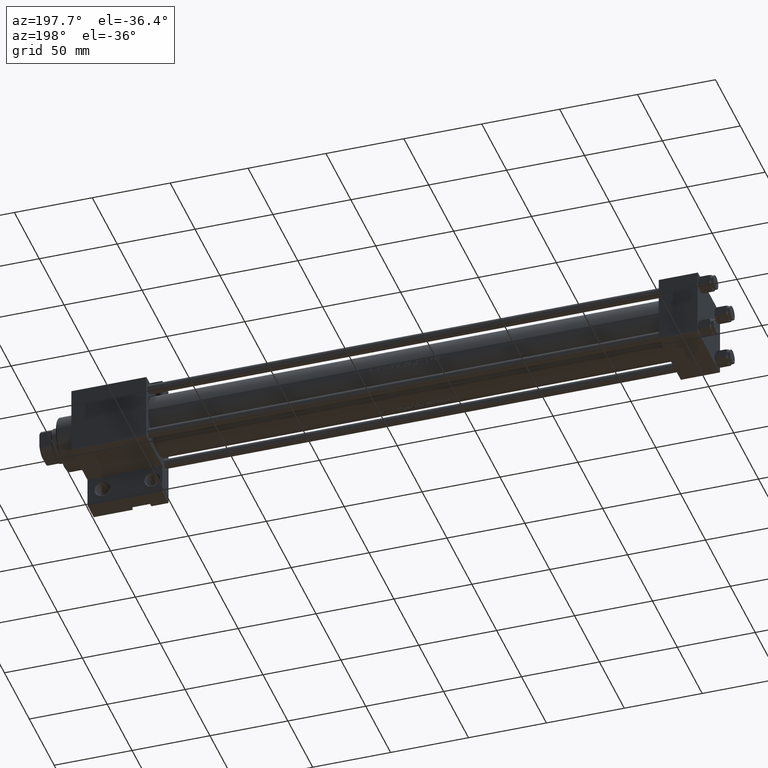
[diagram: clean part render]
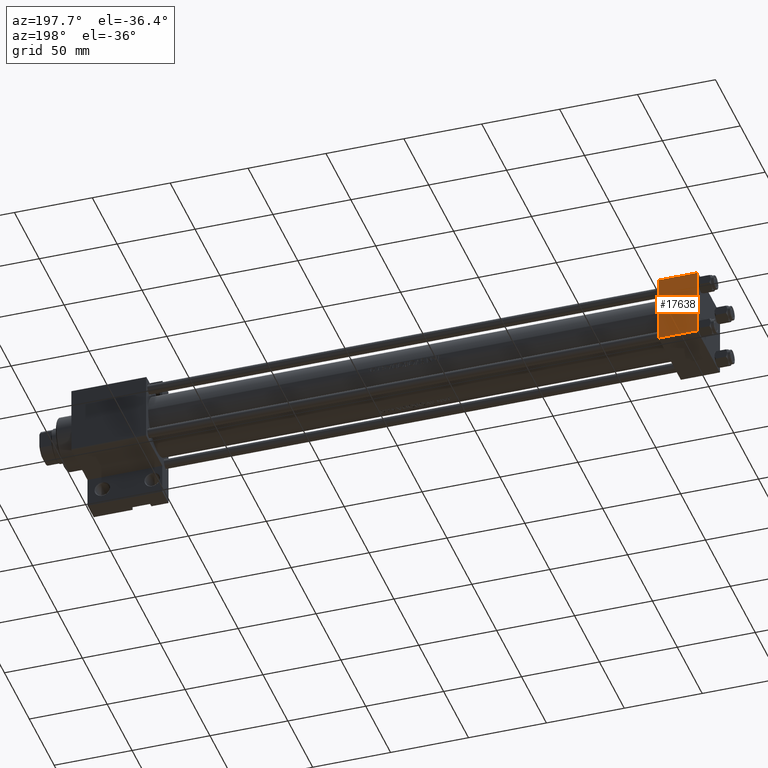
[diagram: same view with one face highlighted and labeled with its STEP entity id]
A machine part, auxiliary view. The second image highlights one B-rep face of the part: STEP entity #17638.
In plain terms, the highlighted planar face has unit normal (0, -1, -0).
Its self-contained STEP definition (entity closure, byte-faithful):
#718 = LINE ( 'NONE', #11575, #21409 ) ;
#1323 = VERTEX_POINT ( 'NONE', #17539 ) ;
#2132 = CARTESIAN_POINT ( 'NONE',  ( 0.000000000000000000, 21.99999999999999289, 22.50000000000000355 ) ) ;
#3146 = FACE_OUTER_BOUND ( 'NONE', #16495, .T. ) ;
#3866 = PLANE ( 'NONE',  #6480 ) ;
#6480 = AXIS2_PLACEMENT_3D ( 'NONE', #18126, #44627, #32590 ) ;
#7642 = DIRECTION ( 'NONE',  ( 0.000000000000000000, -1.000000000000000000, -7.709882115452476934E-17 ) ) ;
#9554 = ORIENTED_EDGE ( 'NONE', *, *, #14096, .F. ) ;
#10480 = CARTESIAN_POINT ( 'NONE',  ( 0.000000000000000000, -21.99999999999997868, 22.50000000000000000 ) ) ;
#11575 = CARTESIAN_POINT ( 'NONE',  ( 25.00000000000000000, -21.99999999999999289, 22.50000000000000000 ) ) ;
#11980 = EDGE_CURVE ( 'NONE', #1323, #14214, #45555, .T. ) ;
#13413 = CARTESIAN_POINT ( 'NONE',  ( 0.000000000000000000, 22.50000000000000000, 22.50000000000000355 ) ) ;
#14078 = VECTOR ( 'NONE', #20897, 1000.000000000000000 ) ;
#14096 = EDGE_CURVE ( 'NONE', #1323, #35906, #25521, .T. ) ;
#14214 = VERTEX_POINT ( 'NONE', #19003 ) ;
#14842 = ORIENTED_EDGE ( 'NONE', *, *, #11980, .T. ) ;
#16495 = EDGE_LOOP ( 'NONE', ( #35566, #35023, #9554, #14842 ) ) ;
#16858 = DIRECTION ( 'NONE',  ( -1.000000000000000000, 0.000000000000000000, 0.000000000000000000 ) ) ;
#17539 = CARTESIAN_POINT ( 'NONE',  ( 25.00000000000000000, 21.99999999999999289, 22.50000000000000355 ) ) ;
#17638 = ADVANCED_FACE ( 'NONE', ( #3146 ), #3866, .F. ) ;
#18126 = CARTESIAN_POINT ( 'NONE',  ( 25.00000000000000000, 22.50000000000000000, 22.50000000000000355 ) ) ;
#18839 = VECTOR ( 'NONE', #16858, 1000.000000000000000 ) ;
#19003 = CARTESIAN_POINT ( 'NONE',  ( 0.000000000000000000, 21.99999999999999289, 22.50000000000000355 ) ) ;
#20897 = DIRECTION ( 'NONE',  ( 0.000000000000000000, -1.000000000000000000, -7.709882115452476934E-17 ) ) ;
#21409 = VECTOR ( 'NONE', #26558, 1000.000000000000000 ) ;
#23462 = VERTEX_POINT ( 'NONE', #10480 ) ;
#25521 = LINE ( 'NONE', #46981, #28845 ) ;
#26558 = DIRECTION ( 'NONE',  ( 1.000000000000000000, 0.000000000000000000, 0.000000000000000000 ) ) ;
#28845 = VECTOR ( 'NONE', #7642, 1000.000000000000000 ) ;
#29407 = EDGE_CURVE ( 'NONE', #23462, #35906, #718, .T. ) ;
#31427 = CARTESIAN_POINT ( 'NONE',  ( 25.00000000000000000, -21.99999999999997868, 22.50000000000000000 ) ) ;
#32590 = DIRECTION ( 'NONE',  ( 0.000000000000000000, 1.000000000000000000, 7.709882115452476934E-17 ) ) ;
#35023 = ORIENTED_EDGE ( 'NONE', *, *, #29407, .T. ) ;
#35135 = LINE ( 'NONE', #13413, #14078 ) ;
#35566 = ORIENTED_EDGE ( 'NONE', *, *, #42689, .T. ) ;
#35906 = VERTEX_POINT ( 'NONE', #31427 ) ;
#42689 = EDGE_CURVE ( 'NONE', #14214, #23462, #35135, .T. ) ;
#44627 = DIRECTION ( 'NONE',  ( 0.000000000000000000, 7.709882115452476934E-17, -1.000000000000000000 ) ) ;
#45555 = LINE ( 'NONE', #2132, #18839 ) ;
#46981 = CARTESIAN_POINT ( 'NONE',  ( 25.00000000000000000, 22.50000000000000000, 22.50000000000000355 ) ) ;